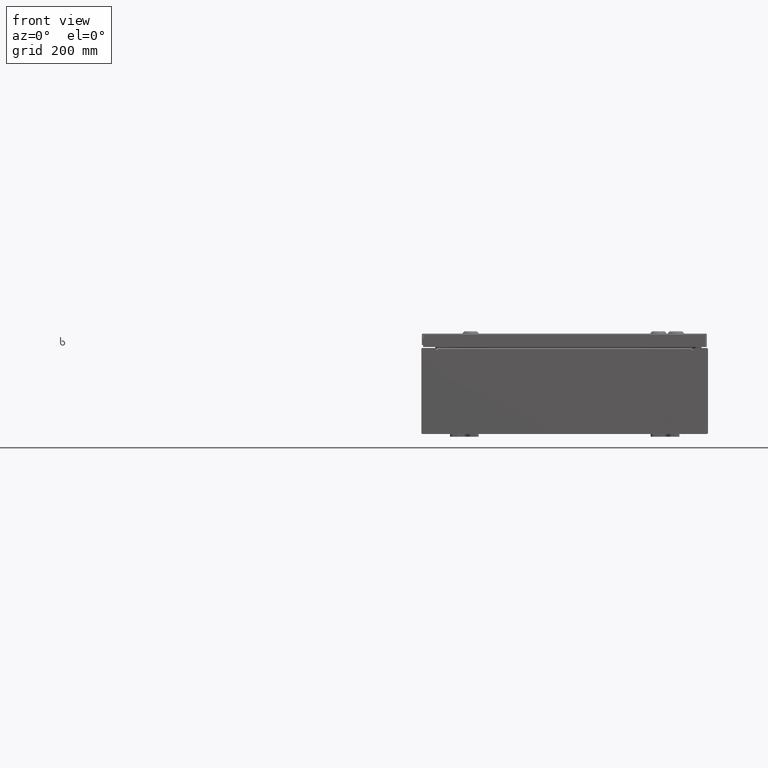
[diagram: clean part render]
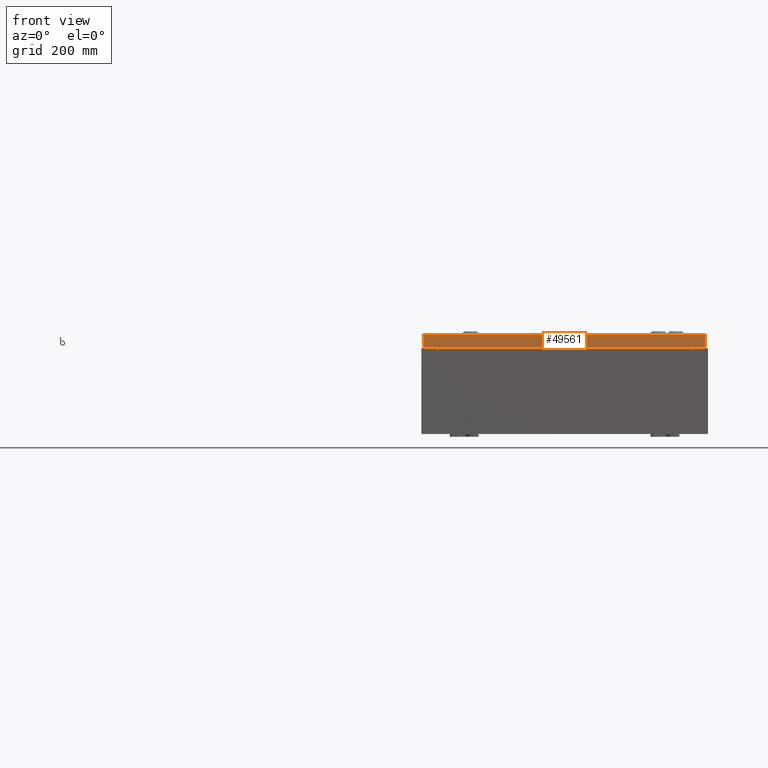
[diagram: same view with one face highlighted and labeled with its STEP entity id]
A machine part, front view. The second image highlights one B-rep face of the part: STEP entity #49561.
In plain terms, the highlighted planar face has unit normal (-0, 1, -0).
Its self-contained STEP definition (entity closure, byte-faithful):
#597 = CARTESIAN_POINT ( 'NONE',  ( 9.848657864376265900, -9.937500000000001800, -0.07469999999999980800 ) ) ;
#871 = CARTESIAN_POINT ( 'NONE',  ( 9.937499999999998200, -9.937500000000003600, -0.9376999999999997600 ) ) ;
#4111 = VECTOR ( 'NONE', #11981, 39.37007874015748100 ) ;
#5634 = DIRECTION ( 'NONE',  ( -3.132763603081817700E-031, 1.000000000000000000, -2.532419924601866100E-015 ) ) ;
#6652 = ORIENTED_EDGE ( 'NONE', *, *, #51396, .T. ) ;
#6831 = VERTEX_POINT ( 'NONE', #26974 ) ;
#7496 = LINE ( 'NONE', #871, #17452 ) ;
#11072 = FACE_OUTER_BOUND ( 'NONE', #21904, .T. ) ;
#11981 = DIRECTION ( 'NONE',  ( 0.0000000000000000000, -2.532419924601866100E-015, -1.000000000000000000 ) ) ;
#12773 = AXIS2_PLACEMENT_3D ( 'NONE', #20595, #5634, #30494 ) ;
#13810 = EDGE_CURVE ( 'NONE', #6831, #57330, #49864, .T. ) ;
#17092 = LINE ( 'NONE', #60581, #4111 ) ;
#17452 = VECTOR ( 'NONE', #35217, 39.37007874015748100 ) ;
#20243 = ORIENTED_EDGE ( 'NONE', *, *, #41364, .F. ) ;
#20595 = CARTESIAN_POINT ( 'NONE',  ( 3.113183830562557100E-030, -9.937500000000001800, 2.542673665674263500E-014 ) ) ;
#21904 = EDGE_LOOP ( 'NONE', ( #20243, #6652, #34985, #61321 ) ) ;
#25536 = PLANE ( 'NONE',  #12773 ) ;
#26974 = CARTESIAN_POINT ( 'NONE',  ( 9.848657864376264100, -9.937500000000001800, -0.08770000000000008300 ) ) ;
#27272 = LINE ( 'NONE', #38979, #51885 ) ;
#30494 = DIRECTION ( 'NONE',  ( 0.0000000000000000000, 2.532419924601866100E-015, 1.000000000000000000 ) ) ;
#34985 = ORIENTED_EDGE ( 'NONE', *, *, #38331, .F. ) ;
#35217 = DIRECTION ( 'NONE',  ( -1.000000000000000000, 4.379057701015054300E-047, 1.237063242414006500E-016 ) ) ;
#36358 = CARTESIAN_POINT ( 'NONE',  ( 9.848657864376265900, -9.937500000000003600, -0.9376999999999997600 ) ) ;
#38331 = EDGE_CURVE ( 'NONE', #57330, #39693, #7496, .T. ) ;
#38979 = CARTESIAN_POINT ( 'NONE',  ( 9.937499999999998200, -9.937500000000001800, -0.08770000000000008300 ) ) ;
#39200 = DIRECTION ( 'NONE',  ( 1.000000000000000000, 3.132763603081818100E-031, -7.843572268217993600E-046 ) ) ;
#39693 = VERTEX_POINT ( 'NONE', #43974 ) ;
#39887 = VECTOR ( 'NONE', #54476, 39.37007874015748100 ) ;
#41364 = EDGE_CURVE ( 'NONE', #59356, #6831, #27272, .T. ) ;
#43343 = CARTESIAN_POINT ( 'NONE',  ( -9.848657864376264100, -9.937500000000001800, -0.08770000000000008300 ) ) ;
#43974 = CARTESIAN_POINT ( 'NONE',  ( -9.848657864376264100, -9.937500000000003600, -0.9376999999999973100 ) ) ;
#49561 = ADVANCED_FACE ( 'NONE', ( #11072 ), #25536, .F. ) ;
#49864 = LINE ( 'NONE', #597, #39887 ) ;
#51396 = EDGE_CURVE ( 'NONE', #59356, #39693, #17092, .T. ) ;
#51885 = VECTOR ( 'NONE', #39200, 39.37007874015748100 ) ;
#54476 = DIRECTION ( 'NONE',  ( -0.0000000000000000000, -2.532419924601866100E-015, -1.000000000000000000 ) ) ;
#57330 = VERTEX_POINT ( 'NONE', #36358 ) ;
#59356 = VERTEX_POINT ( 'NONE', #43343 ) ;
#60581 = CARTESIAN_POINT ( 'NONE',  ( -9.848657864376265900, -9.937500000000001800, 2.542673665674263500E-014 ) ) ;
#61321 = ORIENTED_EDGE ( 'NONE', *, *, #13810, .F. ) ;